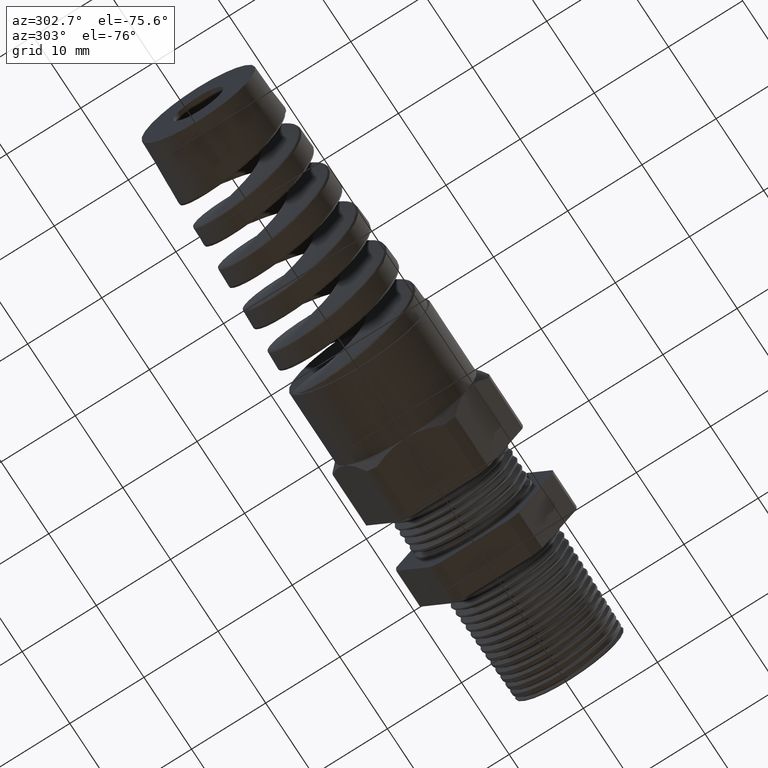
[diagram: clean part render]
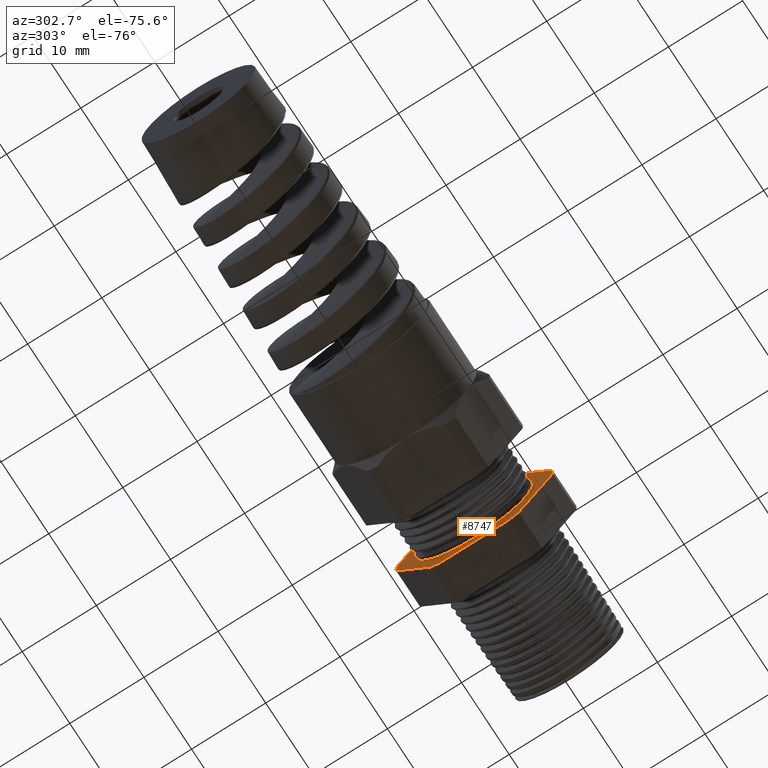
[diagram: same view with one face highlighted and labeled with its STEP entity id]
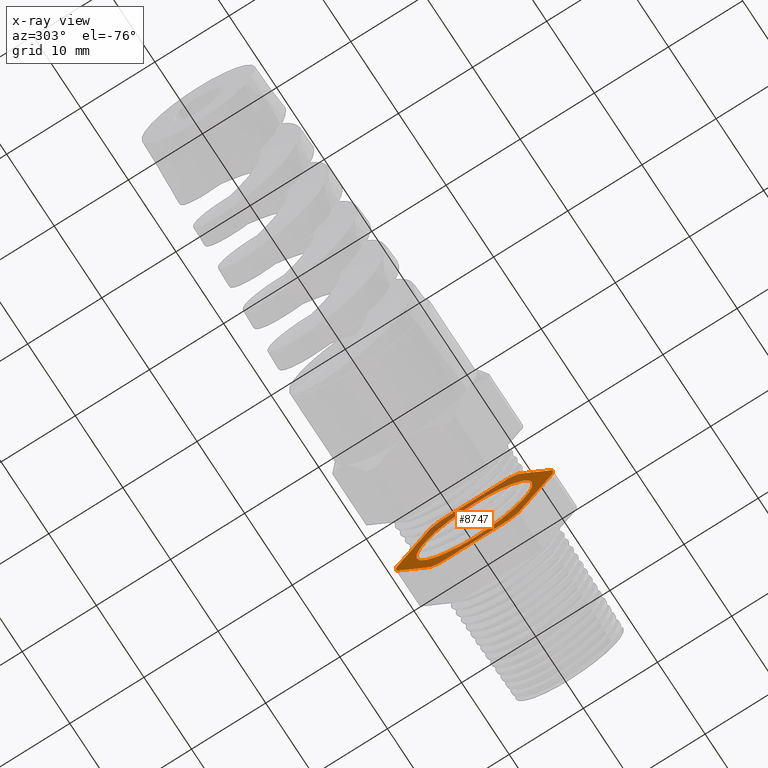
[diagram: x-ray of the same camera — body ghosted, the highlighted face saturated]
A machine part, auxiliary view. The second image highlights one B-rep face of the part: STEP entity #8747.
The next image is the same camera in x-ray: the body ghosted, the highlighted face saturated — about 28% of this face is hidden behind the body in this view.
In plain terms, the highlighted planar face has unit normal (-1, 0, 0).
Its self-contained STEP definition (entity closure, byte-faithful):
#1114 = CARTESIAN_POINT ( 'NONE',  ( -0.5068503937007874400, 0.4150909474475088000, -0.03104138925901227900 ) ) ;
#1115 = DIRECTION ( 'NONE',  ( 0.0000000000000000000, 0.0000000000000000000, 1.000000000000000000 ) ) ;
#1116 = DIRECTION ( 'NONE',  ( -1.000000000000000000, 0.0000000000000000000, 0.0000000000000000000 ) ) ;
#1117 = CARTESIAN_POINT ( 'NONE',  ( -0.5068503937007874400, 0.0000000000000000000, 0.0000000000000000000 ) ) ;
#1118 = AXIS2_PLACEMENT_3D ( 'NONE', #1117, #1116, #1115 ) ;
#1119 = CIRCLE ( 'NONE', #1118, 0.4162500000000000100 ) ;
#1120 = CARTESIAN_POINT ( 'NONE',  ( -0.5068503937007874400, 0.4150909474475088000, 0.03104138925901251200 ) ) ;
#1175 = CARTESIAN_POINT ( 'NONE',  ( -0.5068503937007874400, -0.2344281053908202100, 0.3439586107409879900 ) ) ;
#1176 = DIRECTION ( 'NONE',  ( 0.0000000000000000000, 0.4999999999999998900, 0.8660254037844386000 ) ) ;
#1177 = VECTOR ( 'NONE', #1176, 39.37007874015748900 ) ;
#1178 = CARTESIAN_POINT ( 'NONE',  ( -0.5068503937007874400, -0.1372595264191647000, 0.5122595264191646100 ) ) ;
#1179 = LINE ( 'NONE', #1178, #1177 ) ;
#1180 = CARTESIAN_POINT ( 'NONE',  ( -0.5068503937007874400, -0.4150909474475089100, 0.03104138925901169000 ) ) ;
#1207 = CIRCLE ( 'NONE', #1270, 0.4162500000000001200 ) ;
#1208 = CARTESIAN_POINT ( 'NONE',  ( -0.5068503937007874400, -0.1806628420566884200, -0.3750000000000001100 ) ) ;
#1209 = DIRECTION ( 'NONE',  ( 0.0000000000000000000, -1.000000000000000000, 0.0000000000000000000 ) ) ;
#1210 = VECTOR ( 'NONE', #1209, 39.37007874015748100 ) ;
#1211 = CARTESIAN_POINT ( 'NONE',  ( -0.5068503937007874400, 0.7500000000000001100, -0.3750000000000001100 ) ) ;
#1212 = LINE ( 'NONE', #1211, #1210 ) ;
#1213 = CARTESIAN_POINT ( 'NONE',  ( -0.5068503937007874400, 0.1806628420566884200, -0.3750000000000000600 ) ) ;
#1214 = DIRECTION ( 'NONE',  ( 0.0000000000000000000, 0.0000000000000000000, 1.000000000000000000 ) ) ;
#1215 = DIRECTION ( 'NONE',  ( -1.000000000000000000, 0.0000000000000000000, 0.0000000000000000000 ) ) ;
#1216 = CARTESIAN_POINT ( 'NONE',  ( -0.5068503937007874400, 0.0000000000000000000, 0.0000000000000000000 ) ) ;
#1217 = AXIS2_PLACEMENT_3D ( 'NONE', #1216, #1215, #1214 ) ;
#1218 = CIRCLE ( 'NONE', #1217, 0.4162499999999999500 ) ;
#1219 = CARTESIAN_POINT ( 'NONE',  ( -0.5068503937007874400, 0.2344281053908204300, -0.3439586107409878200 ) ) ;
#1226 = DIRECTION ( 'NONE',  ( 0.0000000000000000000, 0.0000000000000000000, 1.000000000000000000 ) ) ;
#1227 = DIRECTION ( 'NONE',  ( -1.000000000000000000, 0.0000000000000000000, 0.0000000000000000000 ) ) ;
#1228 = CARTESIAN_POINT ( 'NONE',  ( -0.5068503937007874400, 0.0000000000000000000, 0.0000000000000000000 ) ) ;
#1229 = AXIS2_PLACEMENT_3D ( 'NONE', #1228, #1227, #1226 ) ;
#1230 = CIRCLE ( 'NONE', #1229, 0.4162499999999999500 ) ;
#1231 = CARTESIAN_POINT ( 'NONE',  ( -0.5068503937007874400, 0.1806628420566886700, 0.3749999999999999400 ) ) ;
#1232 = DIRECTION ( 'NONE',  ( 0.0000000000000000000, 1.000000000000000000, 0.0000000000000000000 ) ) ;
#1233 = VECTOR ( 'NONE', #1232, 39.37007874015748100 ) ;
#1234 = CARTESIAN_POINT ( 'NONE',  ( -0.5068503937007874400, 0.7500000000000001100, 0.3749999999999999400 ) ) ;
#1235 = LINE ( 'NONE', #1234, #1233 ) ;
#1236 = CARTESIAN_POINT ( 'NONE',  ( -0.5068503937007874400, -0.1806628420566886700, 0.3749999999999999400 ) ) ;
#1239 = CARTESIAN_POINT ( 'NONE',  ( -0.5068503937007874400, 0.2344281053908206000, 0.3439586107409877100 ) ) ;
#1240 = DIRECTION ( 'NONE',  ( 0.0000000000000000000, 0.5000000000000002200, -0.8660254037844386000 ) ) ;
#1241 = VECTOR ( 'NONE', #1240, 39.37007874015747400 ) ;
#1242 = CARTESIAN_POINT ( 'NONE',  ( -0.5068503937007874400, 0.5122595264191648300, -0.1372595264191644500 ) ) ;
#1243 = LINE ( 'NONE', #1242, #1241 ) ;
#1244 = DIRECTION ( 'NONE',  ( 0.0000000000000000000, 0.0000000000000000000, -1.000000000000000000 ) ) ;
#1245 = DIRECTION ( 'NONE',  ( 1.000000000000000000, 0.0000000000000000000, 0.0000000000000000000 ) ) ;
#1246 = CARTESIAN_POINT ( 'NONE',  ( -0.5068503937007873300, 0.0000000000000000000, 0.0000000000000000000 ) ) ;
#1247 = AXIS2_PLACEMENT_3D ( 'NONE', #1246, #1245, #1244 ) ;
#1248 = CIRCLE ( 'NONE', #1247, 0.3085071285809962700 ) ;
#1249 = DIRECTION ( 'NONE',  ( 0.0000000000000000000, 0.0000000000000000000, 1.000000000000000000 ) ) ;
#1250 = DIRECTION ( 'NONE',  ( -1.000000000000000000, 0.0000000000000000000, 0.0000000000000000000 ) ) ;
#1251 = CARTESIAN_POINT ( 'NONE',  ( -0.5068503937007874400, 0.7500000000000001100, 0.0000000000000000000 ) ) ;
#1252 = AXIS2_PLACEMENT_3D ( 'NONE', #1251, #1250, #1249 ) ;
#1253 = PLANE ( 'NONE',  #1252 ) ;
#1254 = FACE_OUTER_BOUND ( 'NONE', #8752, .T. ) ;
#1255 = FACE_BOUND ( 'NONE', #8748, .T. ) ;
#1256 = DIRECTION ( 'NONE',  ( 0.0000000000000000000, 0.0000000000000000000, 1.000000000000000000 ) ) ;
#1257 = DIRECTION ( 'NONE',  ( -1.000000000000000000, 0.0000000000000000000, 0.0000000000000000000 ) ) ;
#1258 = CARTESIAN_POINT ( 'NONE',  ( -0.5068503937007874400, 0.0000000000000000000, 0.0000000000000000000 ) ) ;
#1259 = AXIS2_PLACEMENT_3D ( 'NONE', #1258, #1257, #1256 ) ;
#1260 = CIRCLE ( 'NONE', #1259, 0.4162500000000001200 ) ;
#1261 = CARTESIAN_POINT ( 'NONE',  ( -0.5068503937007874400, -0.4150909474475088000, -0.03104138925901204000 ) ) ;
#1262 = DIRECTION ( 'NONE',  ( 0.0000000000000000000, -0.5000000000000001100, 0.8660254037844386000 ) ) ;
#1263 = VECTOR ( 'NONE', #1262, 39.37007874015748100 ) ;
#1264 = CARTESIAN_POINT ( 'NONE',  ( -0.5068503937007874400, -0.1372595264191644200, -0.5122595264191646100 ) ) ;
#1265 = LINE ( 'NONE', #1264, #1263 ) ;
#1266 = CARTESIAN_POINT ( 'NONE',  ( -0.5068503937007874400, -0.2344281053908201200, -0.3439586107409881600 ) ) ;
#1267 = DIRECTION ( 'NONE',  ( 0.0000000000000000000, 0.0000000000000000000, 1.000000000000000000 ) ) ;
#1268 = DIRECTION ( 'NONE',  ( -1.000000000000000000, 0.0000000000000000000, 0.0000000000000000000 ) ) ;
#1269 = CARTESIAN_POINT ( 'NONE',  ( -0.5068503937007874400, 0.0000000000000000000, 0.0000000000000000000 ) ) ;
#1270 = AXIS2_PLACEMENT_3D ( 'NONE', #1269, #1268, #1267 ) ;
#6816 = DIRECTION ( 'NONE',  ( 0.0000000000000000000, -0.5000000000000000000, -0.8660254037844386000 ) ) ;
#6817 = VECTOR ( 'NONE', #6816, 39.37007874015748900 ) ;
#6818 = CARTESIAN_POINT ( 'NONE',  ( -0.5068503937007874400, 0.5122595264191646100, 0.1372595264191644700 ) ) ;
#6819 = LINE ( 'NONE', #6818, #6817 ) ;
#7978 = DIRECTION ( 'NONE',  ( 0.0000000000000000000, 0.0000000000000000000, -1.000000000000000000 ) ) ;
#7979 = DIRECTION ( 'NONE',  ( 1.000000000000000000, 0.0000000000000000000, 0.0000000000000000000 ) ) ;
#7980 = CARTESIAN_POINT ( 'NONE',  ( -0.5068503937007873300, 0.0000000000000000000, 0.0000000000000000000 ) ) ;
#7981 = AXIS2_PLACEMENT_3D ( 'NONE', #7980, #7979, #7978 ) ;
#7982 = CIRCLE ( 'NONE', #7981, 0.3085071285809962700 ) ;
#7983 = CARTESIAN_POINT ( 'NONE',  ( -0.5068503937007873300, 0.0000000000000000000, 0.3085071285809962700 ) ) ;
#8025 = CARTESIAN_POINT ( 'NONE',  ( -0.5068503937007873300, 3.780765484859564700E-017, -0.3085071285809962700 ) ) ;
#8675 = VERTEX_POINT ( 'NONE', #1120 ) ;
#8676 = ORIENTED_EDGE ( 'NONE', *, *, #8677, .T. ) ;
#8677 = EDGE_CURVE ( 'NONE', #8675, #8678, #1119, .T. ) ;
#8678 = VERTEX_POINT ( 'NONE', #1114 ) ;
#8679 = ORIENTED_EDGE ( 'NONE', *, *, #9584, .T. ) ;
#8717 = VERTEX_POINT ( 'NONE', #1180 ) ;
#8718 = ORIENTED_EDGE ( 'NONE', *, *, #8719, .T. ) ;
#8719 = EDGE_CURVE ( 'NONE', #8717, #8720, #1179, .T. ) ;
#8720 = VERTEX_POINT ( 'NONE', #1175 ) ;
#8721 = ORIENTED_EDGE ( 'NONE', *, *, #8722, .T. ) ;
#8722 = EDGE_CURVE ( 'NONE', #8720, #8723, #10456, .T. ) ;
#8723 = VERTEX_POINT ( 'NONE', #1236 ) ;
#8724 = ORIENTED_EDGE ( 'NONE', *, *, #8725, .T. ) ;
#8725 = EDGE_CURVE ( 'NONE', #8723, #8726, #1235, .T. ) ;
#8726 = VERTEX_POINT ( 'NONE', #1231 ) ;
#8727 = ORIENTED_EDGE ( 'NONE', *, *, #8728, .T. ) ;
#8728 = EDGE_CURVE ( 'NONE', #8726, #8755, #1230, .T. ) ;
#8731 = VERTEX_POINT ( 'NONE', #1219 ) ;
#8732 = ORIENTED_EDGE ( 'NONE', *, *, #8733, .T. ) ;
#8733 = EDGE_CURVE ( 'NONE', #8731, #8734, #1218, .T. ) ;
#8734 = VERTEX_POINT ( 'NONE', #1213 ) ;
#8735 = ORIENTED_EDGE ( 'NONE', *, *, #8736, .T. ) ;
#8736 = EDGE_CURVE ( 'NONE', #8734, #8737, #1212, .T. ) ;
#8737 = VERTEX_POINT ( 'NONE', #1208 ) ;
#8738 = ORIENTED_EDGE ( 'NONE', *, *, #8739, .T. ) ;
#8739 = EDGE_CURVE ( 'NONE', #8737, #8740, #1207, .T. ) ;
#8740 = VERTEX_POINT ( 'NONE', #1266 ) ;
#8741 = ORIENTED_EDGE ( 'NONE', *, *, #8742, .T. ) ;
#8742 = EDGE_CURVE ( 'NONE', #8740, #8743, #1265, .T. ) ;
#8743 = VERTEX_POINT ( 'NONE', #1261 ) ;
#8744 = ORIENTED_EDGE ( 'NONE', *, *, #8745, .T. ) ;
#8745 = EDGE_CURVE ( 'NONE', #8743, #8717, #1260, .T. ) ;
#8747 = ADVANCED_FACE ( 'NONE', ( #1255, #1254 ), #1253, .T. ) ;
#8748 = EDGE_LOOP ( 'NONE', ( #8749, #8751 ) ) ;
#8749 = ORIENTED_EDGE ( 'NONE', *, *, #8750, .T. ) ;
#8750 = EDGE_CURVE ( 'NONE', #11576, #11588, #1248, .T. ) ;
#8751 = ORIENTED_EDGE ( 'NONE', *, *, #11577, .T. ) ;
#8752 = EDGE_LOOP ( 'NONE', ( #8753, #8676, #8679, #8732, #8735, #8738, #8741, #8744, #8718, #8721, #8724, #8727 ) ) ;
#8753 = ORIENTED_EDGE ( 'NONE', *, *, #8754, .T. ) ;
#8754 = EDGE_CURVE ( 'NONE', #8755, #8675, #1243, .T. ) ;
#8755 = VERTEX_POINT ( 'NONE', #1239 ) ;
#9584 = EDGE_CURVE ( 'NONE', #8678, #8731, #6819, .T. ) ;
#10456 = CIRCLE ( 'NONE', #10715, 0.4162500000000000100 ) ;
#10715 = AXIS2_PLACEMENT_3D ( 'NONE', #10968, #10963, #11222 ) ;
#10963 = DIRECTION ( 'NONE',  ( -1.000000000000000000, 0.0000000000000000000, 0.0000000000000000000 ) ) ;
#10968 = CARTESIAN_POINT ( 'NONE',  ( -0.5068503937007874400, 0.0000000000000000000, 0.0000000000000000000 ) ) ;
#11222 = DIRECTION ( 'NONE',  ( 0.0000000000000000000, 0.0000000000000000000, 1.000000000000000000 ) ) ;
#11576 = VERTEX_POINT ( 'NONE', #7983 ) ;
#11577 = EDGE_CURVE ( 'NONE', #11588, #11576, #7982, .T. ) ;
#11588 = VERTEX_POINT ( 'NONE', #8025 ) ;